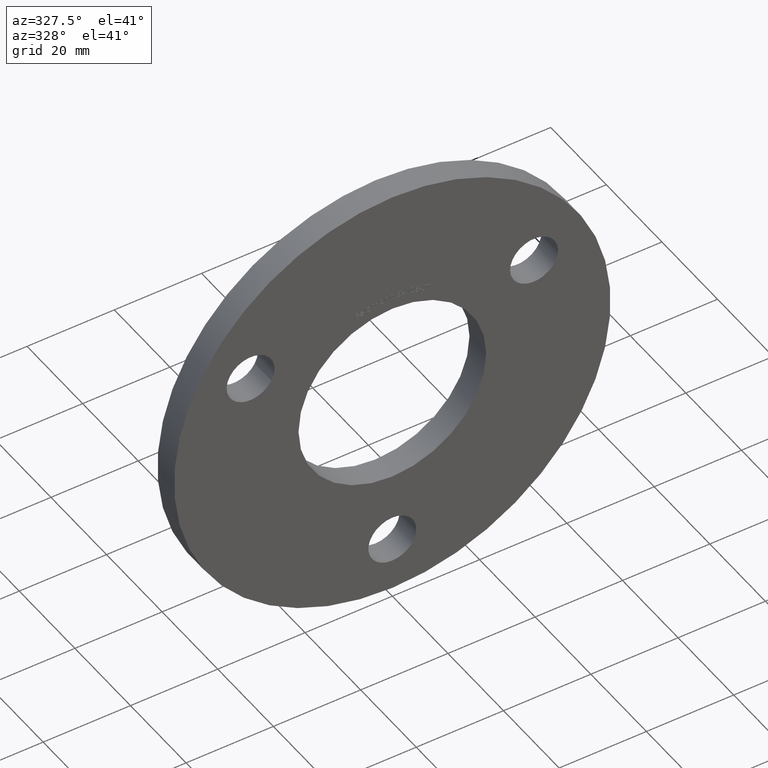
[diagram: clean part render]
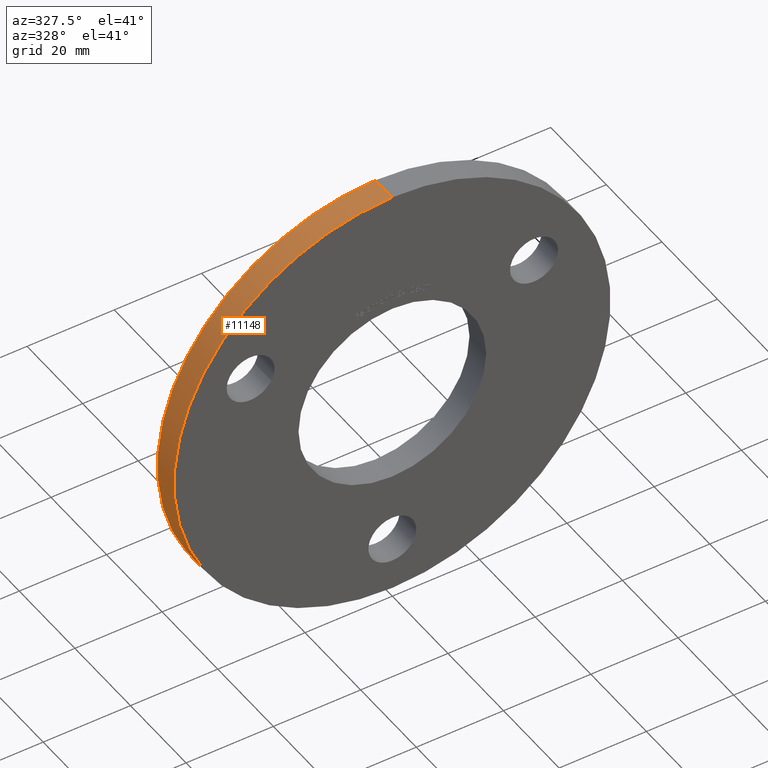
[diagram: same view with one face highlighted and labeled with its STEP entity id]
A machine part, auxiliary view. The second image highlights one B-rep face of the part: STEP entity #11148.
In plain terms, the highlighted cylindrical surface (partial cylindrical patch) has radius 50 mm, axis along (-0, -1, -0).
Its self-contained STEP definition (entity closure, byte-faithful):
#97 = EDGE_CURVE ( 'NONE', #8407, #9215, #7008, .T. ) ;
#506 = EDGE_LOOP ( 'NONE', ( #5465, #8422, #6585, #4672 ) ) ;
#1448 = VECTOR ( 'NONE', #1518, 1000.000000000000000 ) ;
#1518 = DIRECTION ( 'NONE',  ( -0.0000000000000000000, -1.000000000000000000, -0.0000000000000000000 ) ) ;
#1934 = EDGE_CURVE ( 'NONE', #9215, #10400, #6468, .T. ) ;
#2809 = DIRECTION ( 'NONE',  ( 0.0000000000000000000, 0.0000000000000000000, 1.000000000000000000 ) ) ;
#3190 = DIRECTION ( 'NONE',  ( -0.0000000000000000000, -1.000000000000000000, -0.0000000000000000000 ) ) ;
#3350 = LINE ( 'NONE', #4761, #1448 ) ;
#3586 = FACE_OUTER_BOUND ( 'NONE', #506, .T. ) ;
#3739 = DIRECTION ( 'NONE',  ( 0.0000000000000000000, 1.000000000000000000, 0.0000000000000000000 ) ) ;
#4664 = CARTESIAN_POINT ( 'NONE',  ( 0.0000000000000000000, 6.000000000000000000, 0.0000000000000000000 ) ) ;
#4672 = ORIENTED_EDGE ( 'NONE', *, *, #6178, .T. ) ;
#4712 = DIRECTION ( 'NONE',  ( 0.0000000000000000000, 0.0000000000000000000, 1.000000000000000000 ) ) ;
#4761 = CARTESIAN_POINT ( 'NONE',  ( 0.0000000000000000000, 6.000000000000000000, -50.00000000000000000 ) ) ;
#4847 = AXIS2_PLACEMENT_3D ( 'NONE', #10153, #3190, #11040 ) ;
#5066 = CARTESIAN_POINT ( 'NONE',  ( 0.0000000000000000000, 0.0000000000000000000, -50.00000000000000000 ) ) ;
#5465 = ORIENTED_EDGE ( 'NONE', *, *, #1934, .F. ) ;
#5507 = VECTOR ( 'NONE', #8520, 1000.000000000000000 ) ;
#5971 = VERTEX_POINT ( 'NONE', #5066 ) ;
#6096 = CYLINDRICAL_SURFACE ( 'NONE', #4847, 50.00000000000000000 ) ;
#6178 = EDGE_CURVE ( 'NONE', #5971, #10400, #9612, .T. ) ;
#6468 = LINE ( 'NONE', #6794, #5507 ) ;
#6524 = AXIS2_PLACEMENT_3D ( 'NONE', #7419, #7381, #4712 ) ;
#6585 = ORIENTED_EDGE ( 'NONE', *, *, #8591, .T. ) ;
#6794 = CARTESIAN_POINT ( 'NONE',  ( 6.123233995736766100E-015, 6.000000000000000000, 50.00000000000000000 ) ) ;
#7008 = CIRCLE ( 'NONE', #11362, 50.00000000000000000 ) ;
#7109 = CARTESIAN_POINT ( 'NONE',  ( 6.123233995736766100E-015, 0.0000000000000000000, 50.00000000000000000 ) ) ;
#7381 = DIRECTION ( 'NONE',  ( 0.0000000000000000000, 1.000000000000000000, 0.0000000000000000000 ) ) ;
#7419 = CARTESIAN_POINT ( 'NONE',  ( 0.0000000000000000000, 0.0000000000000000000, 0.0000000000000000000 ) ) ;
#7937 = CARTESIAN_POINT ( 'NONE',  ( 0.0000000000000000000, 6.000000000000000000, -50.00000000000000000 ) ) ;
#8407 = VERTEX_POINT ( 'NONE', #7937 ) ;
#8422 = ORIENTED_EDGE ( 'NONE', *, *, #97, .F. ) ;
#8520 = DIRECTION ( 'NONE',  ( -0.0000000000000000000, -1.000000000000000000, -0.0000000000000000000 ) ) ;
#8531 = CARTESIAN_POINT ( 'NONE',  ( 6.123233995736766100E-015, 6.000000000000000000, 50.00000000000000000 ) ) ;
#8591 = EDGE_CURVE ( 'NONE', #8407, #5971, #3350, .T. ) ;
#9215 = VERTEX_POINT ( 'NONE', #8531 ) ;
#9612 = CIRCLE ( 'NONE', #6524, 50.00000000000000000 ) ;
#10153 = CARTESIAN_POINT ( 'NONE',  ( 0.0000000000000000000, 6.000000000000000000, 0.0000000000000000000 ) ) ;
#10400 = VERTEX_POINT ( 'NONE', #7109 ) ;
#11040 = DIRECTION ( 'NONE',  ( 0.0000000000000000000, 0.0000000000000000000, -1.000000000000000000 ) ) ;
#11148 = ADVANCED_FACE ( 'NONE', ( #3586 ), #6096, .T. ) ;
#11362 = AXIS2_PLACEMENT_3D ( 'NONE', #4664, #3739, #2809 ) ;